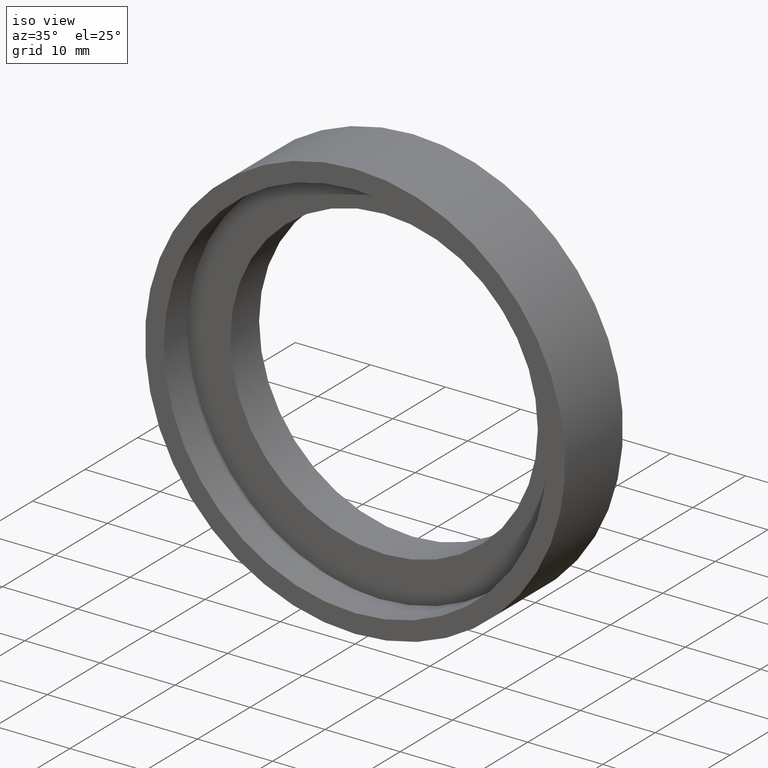
[diagram: clean part render]
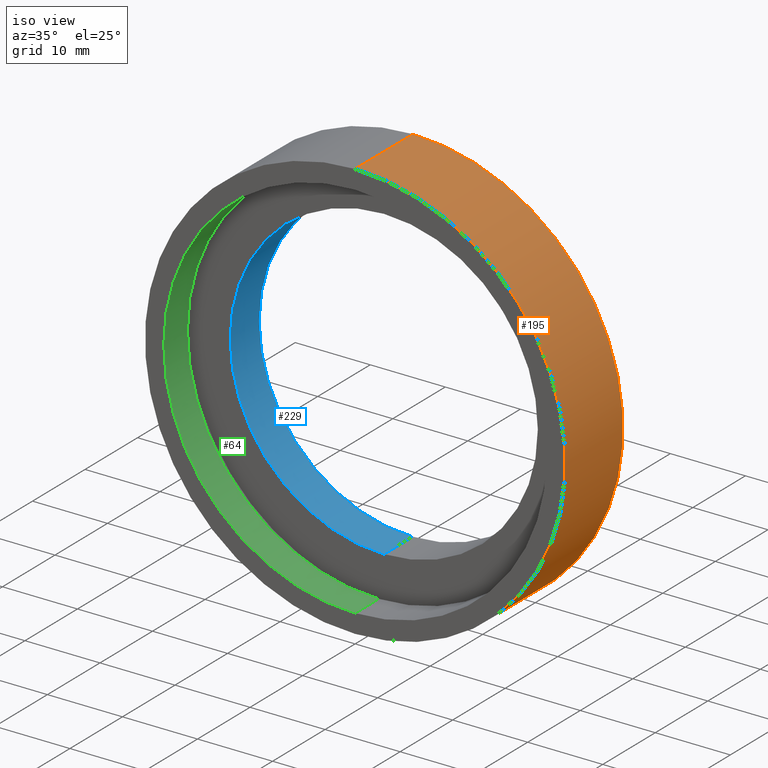
[diagram: same view with three faces highlighted in distinct colors, each labeled with its STEP entity id]
A machine part, iso view with three faces highlighted in distinct colors.
Their STEP definitions:

[orange] entity #195 — the highlighted cylindrical surface (partial cylindrical patch) has radius 28 mm, axis along (-0, 1, -0).
#2 = EDGE_CURVE ( 'NONE', #226, #207, #62, .T. ) ;
#11 = AXIS2_PLACEMENT_3D ( 'NONE', #252, #101, #279 ) ;
#23 = ORIENTED_EDGE ( 'NONE', *, *, #368, .T. ) ;
#38 = CYLINDRICAL_SURFACE ( 'NONE', #256, 28.00000000000000400 ) ;
#48 = ORIENTED_EDGE ( 'NONE', *, *, #397, .F. ) ;
#49 = ORIENTED_EDGE ( 'NONE', *, *, #2, .T. ) ;
#62 = LINE ( 'NONE', #166, #158 ) ;
#80 = DIRECTION ( 'NONE',  ( 0.0000000000000000000, 0.0000000000000000000, 1.000000000000000000 ) ) ;
#101 = DIRECTION ( 'NONE',  ( -0.0000000000000000000, 1.000000000000000000, -0.0000000000000000000 ) ) ;
#117 = FACE_OUTER_BOUND ( 'NONE', #175, .T. ) ;
#139 = CARTESIAN_POINT ( 'NONE',  ( 0.0000000000000000000, 0.0000000000000000000, 28.00000000000000700 ) ) ;
#145 = VERTEX_POINT ( 'NONE', #263 ) ;
#153 = CARTESIAN_POINT ( 'NONE',  ( 3.429011037612589700E-015, 10.99999999999999600, -28.00000000000000400 ) ) ;
#158 = VECTOR ( 'NONE', #332, 1000.000000000000000 ) ;
#166 = CARTESIAN_POINT ( 'NONE',  ( 3.429011037612589700E-015, 60.02082041425541100, -28.00000000000000400 ) ) ;
#175 = EDGE_LOOP ( 'NONE', ( #23, #49, #382, #48 ) ) ;
#195 = ADVANCED_FACE ( 'NONE', ( #117 ), #38, .T. ) ;
#207 = VERTEX_POINT ( 'NONE', #153 ) ;
#210 = DIRECTION ( 'NONE',  ( -0.0000000000000000000, 1.000000000000000000, -0.0000000000000000000 ) ) ;
#219 = CARTESIAN_POINT ( 'NONE',  ( 0.0000000000000000000, 10.99999999999999600, 0.0000000000000000000 ) ) ;
#226 = VERTEX_POINT ( 'NONE', #289 ) ;
#232 = CIRCLE ( 'NONE', #247, 28.00000000000000400 ) ;
#247 = AXIS2_PLACEMENT_3D ( 'NONE', #219, #210, #398 ) ;
#252 = CARTESIAN_POINT ( 'NONE',  ( 0.0000000000000000000, 0.0000000000000000000, 0.0000000000000000000 ) ) ;
#256 = AXIS2_PLACEMENT_3D ( 'NONE', #319, #411, #80 ) ;
#263 = CARTESIAN_POINT ( 'NONE',  ( 0.0000000000000000000, 10.99999999999999600, 28.00000000000000400 ) ) ;
#279 = DIRECTION ( 'NONE',  ( 0.0000000000000000000, 0.0000000000000000000, 1.000000000000000000 ) ) ;
#281 = CARTESIAN_POINT ( 'NONE',  ( 0.0000000000000000000, 60.02082041425541100, 28.00000000000000400 ) ) ;
#285 = VECTOR ( 'NONE', #302, 1000.000000000000000 ) ;
#289 = CARTESIAN_POINT ( 'NONE',  ( 3.429011037612590100E-015, 0.0000000000000000000, -28.00000000000001100 ) ) ;
#302 = DIRECTION ( 'NONE',  ( -0.0000000000000000000, 1.000000000000000000, -0.0000000000000000000 ) ) ;
#305 = EDGE_CURVE ( 'NONE', #145, #207, #232, .T. ) ;
#319 = CARTESIAN_POINT ( 'NONE',  ( 0.0000000000000000000, 60.02082041425541100, 0.0000000000000000000 ) ) ;
#332 = DIRECTION ( 'NONE',  ( -0.0000000000000000000, 1.000000000000000000, -0.0000000000000000000 ) ) ;
#368 = EDGE_CURVE ( 'NONE', #371, #226, #407, .T. ) ;
#371 = VERTEX_POINT ( 'NONE', #139 ) ;
#382 = ORIENTED_EDGE ( 'NONE', *, *, #305, .F. ) ;
#397 = EDGE_CURVE ( 'NONE', #371, #145, #409, .T. ) ;
#398 = DIRECTION ( 'NONE',  ( 0.0000000000000000000, 0.0000000000000000000, 1.000000000000000000 ) ) ;
#407 = CIRCLE ( 'NONE', #11, 28.00000000000000700 ) ;
#409 = LINE ( 'NONE', #281, #285 ) ;
#411 = DIRECTION ( 'NONE',  ( -0.0000000000000000000, 1.000000000000000000, -0.0000000000000000000 ) ) ;

[blue] entity #229 — the highlighted cylindrical surface (partial cylindrical patch) has radius 20.5 mm, axis along (-0, 1, -0).
#20 = AXIS2_PLACEMENT_3D ( 'NONE', #369, #177, #402 ) ;
#36 = ORIENTED_EDGE ( 'NONE', *, *, #351, .F. ) ;
#56 = CIRCLE ( 'NONE', #111, 20.50000000000000700 ) ;
#74 = CIRCLE ( 'NONE', #20, 20.50000000000000700 ) ;
#82 = VECTOR ( 'NONE', #273, 1000.000000000000000 ) ;
#83 = VERTEX_POINT ( 'NONE', #196 ) ;
#88 = LINE ( 'NONE', #355, #356 ) ;
#90 = EDGE_CURVE ( 'NONE', #344, #217, #88, .T. ) ;
#100 = CARTESIAN_POINT ( 'NONE',  ( 0.0000000000000000000, 10.99999999999999600, 0.0000000000000000000 ) ) ;
#109 = CARTESIAN_POINT ( 'NONE',  ( 2.510525938252074900E-015, 60.02082041425541100, -20.50000000000000700 ) ) ;
#111 = AXIS2_PLACEMENT_3D ( 'NONE', #100, #270, #214 ) ;
#116 = DIRECTION ( 'NONE',  ( -0.0000000000000000000, 1.000000000000000000, -0.0000000000000000000 ) ) ;
#136 = LINE ( 'NONE', #109, #82 ) ;
#152 = DIRECTION ( 'NONE',  ( 0.0000000000000000000, 0.0000000000000000000, 1.000000000000000000 ) ) ;
#177 = DIRECTION ( 'NONE',  ( -0.0000000000000000000, 1.000000000000000000, -0.0000000000000000000 ) ) ;
#188 = CYLINDRICAL_SURFACE ( 'NONE', #418, 20.50000000000000700 ) ;
#196 = CARTESIAN_POINT ( 'NONE',  ( 2.510525938252074900E-015, 10.99999999999999600, -20.50000000000000700 ) ) ;
#213 = CARTESIAN_POINT ( 'NONE',  ( 0.0000000000000000000, 5.499999999999998200, 20.50000000000000700 ) ) ;
#214 = DIRECTION ( 'NONE',  ( 0.0000000000000000000, 0.0000000000000000000, 1.000000000000000000 ) ) ;
#217 = VERTEX_POINT ( 'NONE', #349 ) ;
#218 = ORIENTED_EDGE ( 'NONE', *, *, #401, .T. ) ;
#220 = VERTEX_POINT ( 'NONE', #350 ) ;
#229 = ADVANCED_FACE ( 'NONE', ( #233 ), #188, .F. ) ;
#233 = FACE_OUTER_BOUND ( 'NONE', #283, .T. ) ;
#270 = DIRECTION ( 'NONE',  ( -0.0000000000000000000, 1.000000000000000000, -0.0000000000000000000 ) ) ;
#273 = DIRECTION ( 'NONE',  ( -0.0000000000000000000, 1.000000000000000000, -0.0000000000000000000 ) ) ;
#283 = EDGE_LOOP ( 'NONE', ( #36, #293, #218, #408 ) ) ;
#293 = ORIENTED_EDGE ( 'NONE', *, *, #323, .T. ) ;
#323 = EDGE_CURVE ( 'NONE', #220, #83, #136, .T. ) ;
#344 = VERTEX_POINT ( 'NONE', #213 ) ;
#349 = CARTESIAN_POINT ( 'NONE',  ( 0.0000000000000000000, 10.99999999999999600, 20.50000000000000700 ) ) ;
#350 = CARTESIAN_POINT ( 'NONE',  ( 2.510525938252074900E-015, 5.499999999999998200, -20.50000000000000700 ) ) ;
#351 = EDGE_CURVE ( 'NONE', #220, #344, #74, .T. ) ;
#355 = CARTESIAN_POINT ( 'NONE',  ( 0.0000000000000000000, 60.02082041425541100, 20.50000000000000700 ) ) ;
#356 = VECTOR ( 'NONE', #116, 1000.000000000000000 ) ;
#369 = CARTESIAN_POINT ( 'NONE',  ( 0.0000000000000000000, 5.499999999999998200, 0.0000000000000000000 ) ) ;
#378 = CARTESIAN_POINT ( 'NONE',  ( 0.0000000000000000000, 60.02082041425541100, 0.0000000000000000000 ) ) ;
#380 = DIRECTION ( 'NONE',  ( -0.0000000000000000000, 1.000000000000000000, -0.0000000000000000000 ) ) ;
#401 = EDGE_CURVE ( 'NONE', #83, #217, #56, .T. ) ;
#402 = DIRECTION ( 'NONE',  ( 0.0000000000000000000, 0.0000000000000000000, 1.000000000000000000 ) ) ;
#408 = ORIENTED_EDGE ( 'NONE', *, *, #90, .F. ) ;
#418 = AXIS2_PLACEMENT_3D ( 'NONE', #378, #380, #152 ) ;

[green] entity #64 — the highlighted cylindrical surface (partial cylindrical patch) has radius 25.5 mm, axis along (-0, 1, -0).
#1 = VERTEX_POINT ( 'NONE', #298 ) ;
#6 = CARTESIAN_POINT ( 'NONE',  ( 0.0000000000000000000, 0.0000000000000000000, 25.50000000000000400 ) ) ;
#14 = DIRECTION ( 'NONE',  ( -0.0000000000000000000, 1.000000000000000000, -0.0000000000000000000 ) ) ;
#26 = VECTOR ( 'NONE', #60, 1000.000000000000000 ) ;
#29 = ORIENTED_EDGE ( 'NONE', *, *, #391, .F. ) ;
#34 = ORIENTED_EDGE ( 'NONE', *, *, #343, .T. ) ;
#35 = CARTESIAN_POINT ( 'NONE',  ( 0.0000000000000000000, 4.499999999999997300, 0.0000000000000000000 ) ) ;
#45 = LINE ( 'NONE', #434, #140 ) ;
#50 = CARTESIAN_POINT ( 'NONE',  ( 0.0000000000000000000, 0.0000000000000000000, 0.0000000000000000000 ) ) ;
#54 = AXIS2_PLACEMENT_3D ( 'NONE', #35, #135, #337 ) ;
#58 = AXIS2_PLACEMENT_3D ( 'NONE', #50, #14, #414 ) ;
#60 = DIRECTION ( 'NONE',  ( -0.0000000000000000000, 1.000000000000000000, -0.0000000000000000000 ) ) ;
#64 = ADVANCED_FACE ( 'NONE', ( #191 ), #277, .F. ) ;
#66 = CIRCLE ( 'NONE', #54, 25.50000000000000400 ) ;
#71 = VERTEX_POINT ( 'NONE', #417 ) ;
#104 = EDGE_CURVE ( 'NONE', #71, #245, #429, .T. ) ;
#120 = ORIENTED_EDGE ( 'NONE', *, *, #415, .T. ) ;
#121 = DIRECTION ( 'NONE',  ( -0.0000000000000000000, 1.000000000000000000, -0.0000000000000000000 ) ) ;
#135 = DIRECTION ( 'NONE',  ( -0.0000000000000000000, 1.000000000000000000, -0.0000000000000000000 ) ) ;
#140 = VECTOR ( 'NONE', #432, 1000.000000000000000 ) ;
#160 = CARTESIAN_POINT ( 'NONE',  ( 0.0000000000000000000, 60.02082041425541100, 0.0000000000000000000 ) ) ;
#191 = FACE_OUTER_BOUND ( 'NONE', #286, .T. ) ;
#204 = DIRECTION ( 'NONE',  ( 0.0000000000000000000, 0.0000000000000000000, 1.000000000000000000 ) ) ;
#243 = VERTEX_POINT ( 'NONE', #257 ) ;
#245 = VERTEX_POINT ( 'NONE', #6 ) ;
#257 = CARTESIAN_POINT ( 'NONE',  ( 0.0000000000000000000, 4.499999999999997300, 25.50000000000000400 ) ) ;
#277 = CYLINDRICAL_SURFACE ( 'NONE', #393, 25.50000000000000400 ) ;
#286 = EDGE_LOOP ( 'NONE', ( #425, #120, #34, #29 ) ) ;
#298 = CARTESIAN_POINT ( 'NONE',  ( 3.122849337825751400E-015, 4.499999999999997300, -25.50000000000000400 ) ) ;
#337 = DIRECTION ( 'NONE',  ( 0.0000000000000000000, 0.0000000000000000000, 1.000000000000000000 ) ) ;
#342 = CARTESIAN_POINT ( 'NONE',  ( 3.122849337825751400E-015, 60.02082041425541100, -25.50000000000000400 ) ) ;
#343 = EDGE_CURVE ( 'NONE', #1, #243, #66, .T. ) ;
#383 = LINE ( 'NONE', #342, #26 ) ;
#391 = EDGE_CURVE ( 'NONE', #245, #243, #45, .T. ) ;
#393 = AXIS2_PLACEMENT_3D ( 'NONE', #160, #121, #204 ) ;
#414 = DIRECTION ( 'NONE',  ( 0.0000000000000000000, 0.0000000000000000000, 1.000000000000000000 ) ) ;
#415 = EDGE_CURVE ( 'NONE', #71, #1, #383, .T. ) ;
#417 = CARTESIAN_POINT ( 'NONE',  ( 3.122849337825751400E-015, 0.0000000000000000000, -25.50000000000000400 ) ) ;
#425 = ORIENTED_EDGE ( 'NONE', *, *, #104, .F. ) ;
#429 = CIRCLE ( 'NONE', #58, 25.50000000000000400 ) ;
#432 = DIRECTION ( 'NONE',  ( -0.0000000000000000000, 1.000000000000000000, -0.0000000000000000000 ) ) ;
#434 = CARTESIAN_POINT ( 'NONE',  ( 0.0000000000000000000, 60.02082041425541100, 25.50000000000000400 ) ) ;